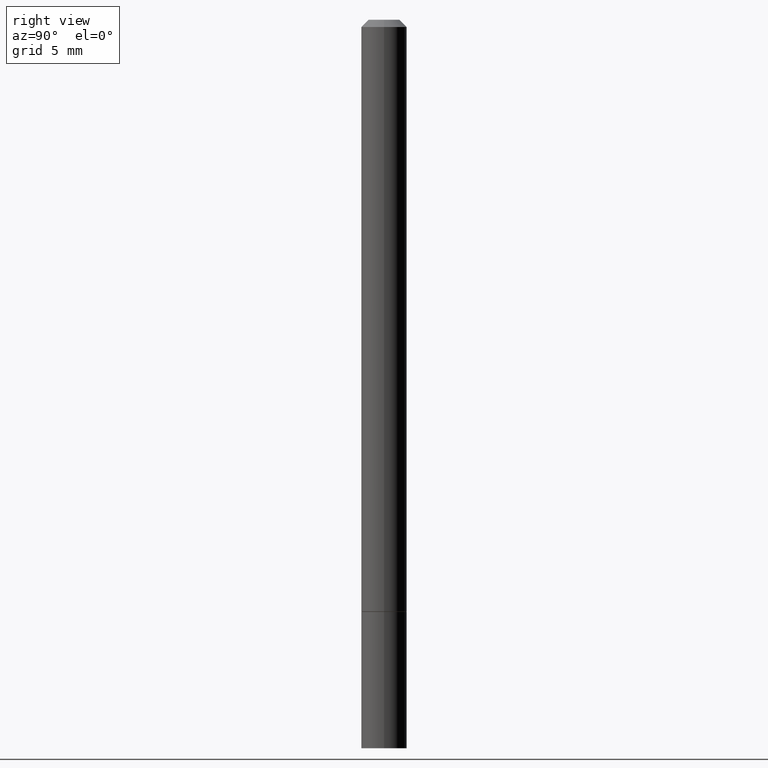
[diagram: clean part render]
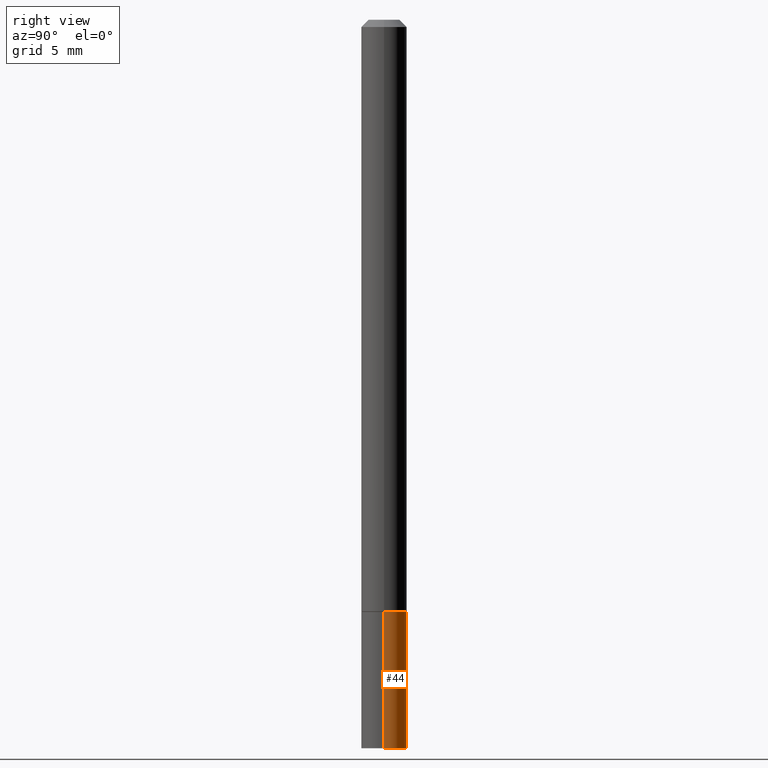
[diagram: same view with one face highlighted and labeled with its STEP entity id]
A machine part, right view. The second image highlights one B-rep face of the part: STEP entity #44.
In plain terms, the highlighted cylindrical surface (edge-blend (fillet) strip) has radius 1.5875 mm, axis along (-0, 0, 1).
Its self-contained STEP definition (entity closure, byte-faithful):
#9 = VERTEX_POINT ( 'NONE', #109 ) ;
#10 = ORIENTED_EDGE ( 'NONE', *, *, #147, .T. ) ;
#22 = CIRCLE ( 'NONE', #330, 0.06250000000000001388 ) ;
#26 = DIRECTION ( 'NONE',  ( -2.445468806185136877E-29, 3.491481338843145188E-15, 1.000000000000000000 ) ) ;
#37 = EDGE_LOOP ( 'NONE', ( #10, #97, #240, #158 ) ) ;
#43 = FACE_OUTER_BOUND ( 'NONE', #37, .T. ) ;
#44 = ADVANCED_FACE ( 'NONE', ( #43 ), #328, .T. ) ;
#49 = CARTESIAN_POINT ( 'NONE',  ( 0.06250000000000001388, -4.364351673553918173E-16, 3.047610484872460571E-30 ) ) ;
#52 = CARTESIAN_POINT ( 'NONE',  ( 0.000000000000000000, 0.000000000000000000, 0.000000000000000000 ) ) ;
#76 = DIRECTION ( 'NONE',  ( -2.445468806185136597E-29, 3.491481338843145583E-15, 1.000000000000000000 ) ) ;
#92 = VERTEX_POINT ( 'NONE', #301 ) ;
#95 = CARTESIAN_POINT ( 'NONE',  ( -0.06250000000000001388, -5.884220716803138678E-15, -1.625000000000000000 ) ) ;
#97 = ORIENTED_EDGE ( 'NONE', *, *, #136, .T. ) ;
#108 = DIRECTION ( 'NONE',  ( -2.445468806185136597E-29, 3.491481338843145583E-15, 1.000000000000000000 ) ) ;
#109 = CARTESIAN_POINT ( 'NONE',  ( 0.06250000000000001388, -7.419397845041682046E-15, -2.000000000000000000 ) ) ;
#114 = VECTOR ( 'NONE', #298, 39.37007874015748143 ) ;
#136 = EDGE_CURVE ( 'NONE', #203, #181, #257, .T. ) ;
#147 = EDGE_CURVE ( 'NONE', #9, #203, #22, .T. ) ;
#158 = ORIENTED_EDGE ( 'NONE', *, *, #239, .F. ) ;
#178 = DIRECTION ( 'NONE',  ( -2.445468806185136597E-29, 3.491481338843145583E-15, 1.000000000000000000 ) ) ;
#181 = VERTEX_POINT ( 'NONE', #95 ) ;
#182 = CIRCLE ( 'NONE', #229, 0.06250000000000001388 ) ;
#203 = VERTEX_POINT ( 'NONE', #339 ) ;
#206 = CARTESIAN_POINT ( 'NONE',  ( -0.06250000000000001388, 4.440892098500627148E-16, -3.074334431409317165E-30 ) ) ;
#211 = DIRECTION ( 'NONE',  ( 1.000000000000000000, -6.982962677686261189E-15, 0.000000000000000000 ) ) ;
#224 = CARTESIAN_POINT ( 'NONE',  ( 4.890937612370273194E-29, -6.982962677686291165E-15, -2.000000000000000000 ) ) ;
#229 = AXIS2_PLACEMENT_3D ( 'NONE', #329, #108, #277 ) ;
#239 = EDGE_CURVE ( 'NONE', #9, #92, #250, .T. ) ;
#240 = ORIENTED_EDGE ( 'NONE', *, *, #270, .F. ) ;
#243 = VECTOR ( 'NONE', #26, 39.37007874015748143 ) ;
#250 = LINE ( 'NONE', #49, #243 ) ;
#257 = LINE ( 'NONE', #206, #114 ) ;
#270 = EDGE_CURVE ( 'NONE', #92, #181, #182, .T. ) ;
#277 = DIRECTION ( 'NONE',  ( 1.000000000000000000, -6.982962677686261189E-15, 0.000000000000000000 ) ) ;
#280 = DIRECTION ( 'NONE',  ( 1.000000000000000000, -6.982962677686267499E-15, 4.876176775795935793E-29 ) ) ;
#298 = DIRECTION ( 'NONE',  ( -2.445468806185136877E-29, 3.491481338843145188E-15, 1.000000000000000000 ) ) ;
#301 = CARTESIAN_POINT ( 'NONE',  ( 0.06250000000000001388, -6.110092342975503093E-15, -1.625000000000000000 ) ) ;
#314 = AXIS2_PLACEMENT_3D ( 'NONE', #52, #76, #280 ) ;
#328 = CYLINDRICAL_SURFACE ( 'NONE', #314, 0.06250000000000001388 ) ;
#329 = CARTESIAN_POINT ( 'NONE',  ( 3.973886810050846970E-29, -5.673657175620112213E-15, -1.625000000000000000 ) ) ;
#330 = AXIS2_PLACEMENT_3D ( 'NONE', #224, #178, #211 ) ;
#339 = CARTESIAN_POINT ( 'NONE',  ( -0.06250000000000001388, -5.884220716803138678E-15, -2.000000000000000000 ) ) ;